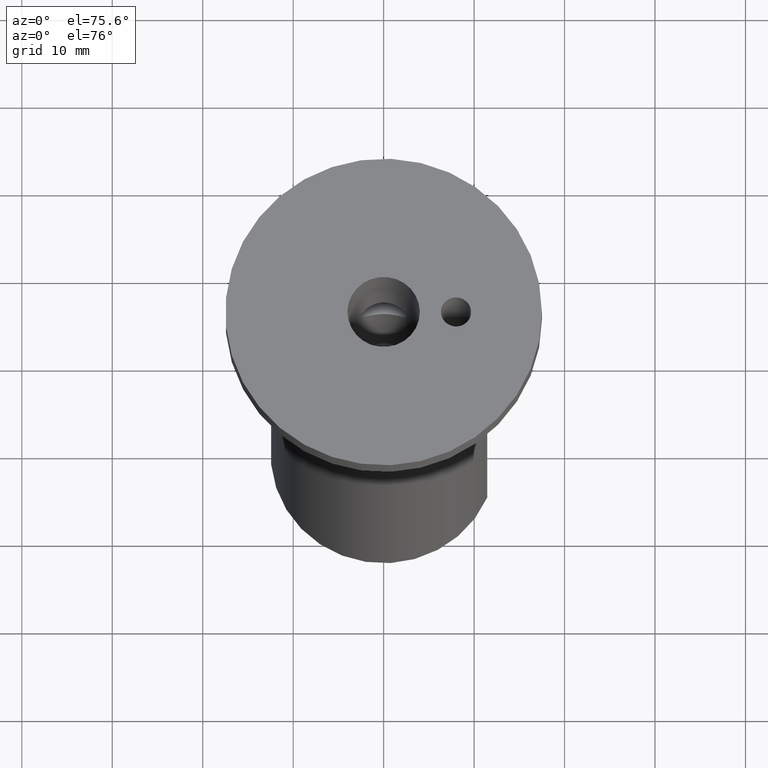
[diagram: clean part render]
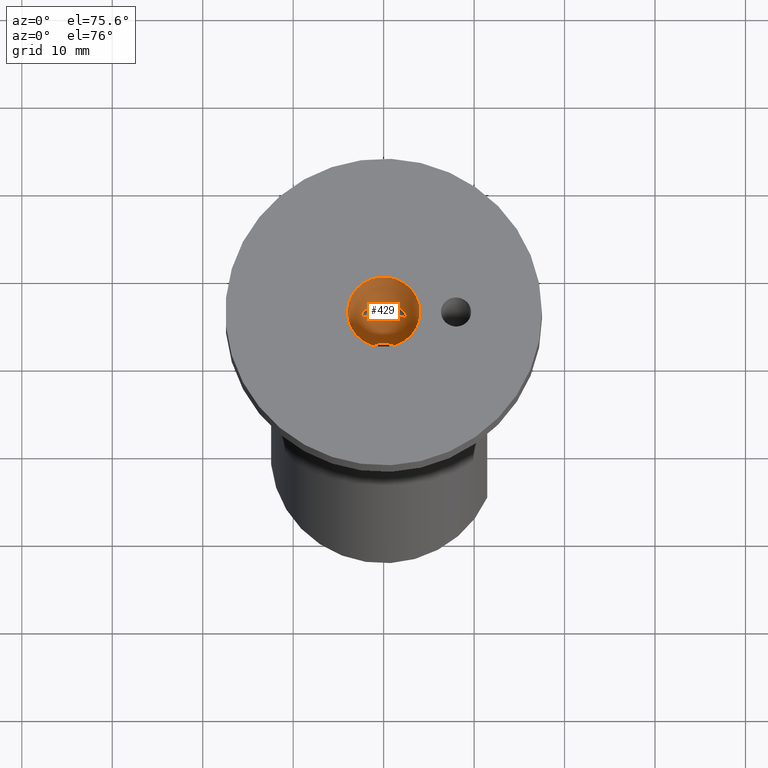
[diagram: same view with one face highlighted and labeled with its STEP entity id]
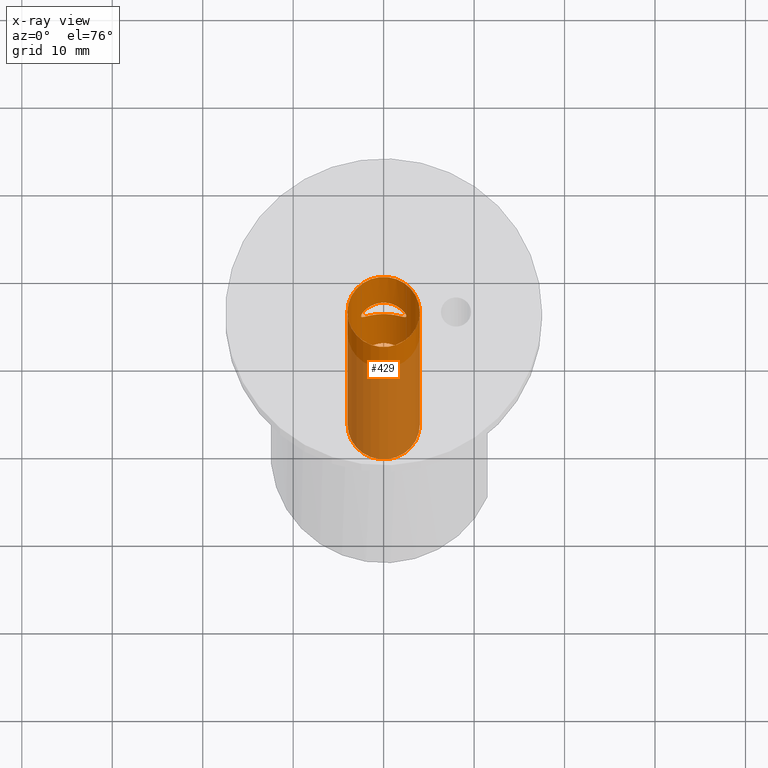
[diagram: x-ray of the same camera — body ghosted, the highlighted face saturated]
A machine part, auxiliary view. The second image highlights one B-rep face of the part: STEP entity #429.
The next image is the same camera in x-ray: the body ghosted, the highlighted face saturated — about 57% of this face is hidden behind the body in this view.
In plain terms, the highlighted cylindrical surface (bore or boss wall) has radius 4 mm, axis along (0, 0, -1).
Its self-contained STEP definition (entity closure, byte-faithful):
#24=FACE_BOUND('',#95,.T.);
#25=FACE_BOUND('',#96,.T.);
#63=FACE_OUTER_BOUND('',#94,.T.);
#94=EDGE_LOOP('',(#389,#390,#391,#392));
#95=EDGE_LOOP('',(#393,#394));
#96=EDGE_LOOP('',(#395,#396));
#101=B_SPLINE_CURVE_WITH_KNOTS('',3,(#725,#726,#727,#728,#729,#730,#731,
#732,#733,#734,#735,#736,#737,#738,#739,#740,#741,#742),.UNSPECIFIED.,.F.,
 .F.,(4,2,2,2,2,2,2,2,4),(0.,0.0986235986499876,0.197247197299975,0.295063559412484,
0.392879921524993,0.490696283637503,0.588512645750012,0.687136244399999,
0.785759843049987),.UNSPECIFIED.);
#102=B_SPLINE_CURVE_WITH_KNOTS('',3,(#743,#744,#745,#746,#747,#748,#749,
#750,#751,#752,#753,#754,#755,#756,#757,#758,#759,#760),.UNSPECIFIED.,.F.,
 .F.,(4,2,2,2,2,2,2,2,4),(0.785759843049987,0.884383441699975,0.983007040349962,
1.08082340246247,1.17863976457498,1.27645612668749,1.3742724888,1.47289608744999,
1.57151968609997),.UNSPECIFIED.);
#103=B_SPLINE_CURVE_WITH_KNOTS('',3,(#767,#768,#769,#770,#771,#772,#773,
#774,#775,#776,#777,#778,#779,#780,#781,#782,#783,#784),.UNSPECIFIED.,.F.,
 .F.,(4,2,2,2,2,2,2,2,4),(0.,0.0986235986499876,0.197247197299975,0.295063559412484,
0.392879921524993,0.490696283637503,0.588512645750012,0.687136244399999,
0.785759843049987),.UNSPECIFIED.);
#104=B_SPLINE_CURVE_WITH_KNOTS('',3,(#785,#786,#787,#788,#789,#790,#791,
#792,#793,#794,#795,#796,#797,#798,#799,#800,#801,#802),.UNSPECIFIED.,.F.,
 .F.,(4,2,2,2,2,2,2,2,4),(0.785759843049987,0.884383441699974,0.983007040349962,
1.08082340246247,1.17863976457498,1.27645612668749,1.3742724888,1.47289608744999,
1.57151968609997),.UNSPECIFIED.);
#131=LINE('',#842,#158);
#158=VECTOR('',#604,4.);
#172=CIRCLE('',#471,4.);
#179=CIRCLE('',#486,4.);
#204=VERTEX_POINT('',#722);
#205=VERTEX_POINT('',#724);
#207=VERTEX_POINT('',#764);
#208=VERTEX_POINT('',#766);
#214=VERTEX_POINT('',#816);
#219=VERTEX_POINT('',#839);
#255=EDGE_CURVE('',#205,#204,#101,.T.);
#256=EDGE_CURVE('',#204,#205,#102,.T.);
#259=EDGE_CURVE('',#208,#207,#103,.T.);
#260=EDGE_CURVE('',#207,#208,#104,.T.);
#267=EDGE_CURVE('',#214,#214,#172,.T.);
#277=EDGE_CURVE('',#219,#219,#179,.T.);
#278=EDGE_CURVE('',#219,#214,#131,.T.);
#389=ORIENTED_EDGE('',*,*,#277,.T.);
#390=ORIENTED_EDGE('',*,*,#278,.T.);
#391=ORIENTED_EDGE('',*,*,#267,.F.);
#392=ORIENTED_EDGE('',*,*,#278,.F.);
#393=ORIENTED_EDGE('',*,*,#255,.T.);
#394=ORIENTED_EDGE('',*,*,#256,.T.);
#395=ORIENTED_EDGE('',*,*,#259,.T.);
#396=ORIENTED_EDGE('',*,*,#260,.T.);
#406=CYLINDRICAL_SURFACE('',#487,4.);
#429=ADVANCED_FACE('',(#63,#24,#25),#406,.F.);
#471=AXIS2_PLACEMENT_3D('',#817,#567,#568);
#486=AXIS2_PLACEMENT_3D('',#840,#600,#601);
#487=AXIS2_PLACEMENT_3D('',#841,#602,#603);
#567=DIRECTION('center_axis',(0.,0.,-1.));
#568=DIRECTION('ref_axis',(1.,0.,0.));
#600=DIRECTION('center_axis',(0.,0.,-1.));
#601=DIRECTION('ref_axis',(1.,0.,0.));
#602=DIRECTION('center_axis',(0.,0.,-1.));
#603=DIRECTION('ref_axis',(-1.,0.,0.));
#604=DIRECTION('',(0.,0.,1.));
#722=CARTESIAN_POINT('',(2.5175,3.10840694729631,-14.));
#724=CARTESIAN_POINT('',(-2.5175,3.10840694729632,-14.));
#725=CARTESIAN_POINT('Ctrl Pts',(-2.5175,3.10840694729632,-14.));
#726=CARTESIAN_POINT('Ctrl Pts',(-2.5175,3.10840694729632,-13.6712546711667));
#727=CARTESIAN_POINT('Ctrl Pts',(-2.4498460511641,3.16599705185193,-13.3310360395569));
#728=CARTESIAN_POINT('Ctrl Pts',(-2.19081428504988,3.35046453738414,-12.7156343303178));
#729=CARTESIAN_POINT('Ctrl Pts',(-1.99945256641406,3.47306284190257,-12.4391699231398));
#730=CARTESIAN_POINT('Ctrl Pts',(-1.56262514469678,3.69014917492908,-12.0023425014225));
#731=CARTESIAN_POINT('Ctrl Pts',(-1.28570809922908,3.8011176237538,-11.8097566006004));
#732=CARTESIAN_POINT('Ctrl Pts',(-0.667689951685592,3.9567323396499,-11.5496118632094));
#733=CARTESIAN_POINT('Ctrl Pts',(-0.32605454037503,4.,-11.4825));
#734=CARTESIAN_POINT('Ctrl Pts',(0.32605454037503,4.,-11.4825));
#735=CARTESIAN_POINT('Ctrl Pts',(0.667689951685592,3.9567323396499,-11.5496118632094));
#736=CARTESIAN_POINT('Ctrl Pts',(1.28570809922908,3.8011176237538,-11.8097566006004));
#737=CARTESIAN_POINT('Ctrl Pts',(1.56262514469678,3.69014917492908,-12.0023425014225));
#738=CARTESIAN_POINT('Ctrl Pts',(1.99945256641406,3.47306284190257,-12.4391699231398));
#739=CARTESIAN_POINT('Ctrl Pts',(2.19081428504988,3.35046453738414,-12.7156343303178));
#740=CARTESIAN_POINT('Ctrl Pts',(2.4498460511641,3.16599705185193,-13.3310360395569));
#741=CARTESIAN_POINT('Ctrl Pts',(2.5175,3.10840694729631,-13.6712546711667));
#742=CARTESIAN_POINT('Ctrl Pts',(2.5175,3.10840694729631,-14.));
#743=CARTESIAN_POINT('Ctrl Pts',(2.5175,3.10840694729631,-14.));
#744=CARTESIAN_POINT('Ctrl Pts',(2.5175,3.10840694729631,-14.3287453288333));
#745=CARTESIAN_POINT('Ctrl Pts',(2.4498460511641,3.16599705185193,-14.6689639604431));
#746=CARTESIAN_POINT('Ctrl Pts',(2.19081428504988,3.35046453738413,-15.2843656696822));
#747=CARTESIAN_POINT('Ctrl Pts',(1.99945256641406,3.47306284190257,-15.5608300768602));
#748=CARTESIAN_POINT('Ctrl Pts',(1.56262514469678,3.69014917492908,-15.9976574985775));
#749=CARTESIAN_POINT('Ctrl Pts',(1.28570809922908,3.8011176237538,-16.1902433993996));
#750=CARTESIAN_POINT('Ctrl Pts',(0.667689951685593,3.9567323396499,-16.4503881367906));
#751=CARTESIAN_POINT('Ctrl Pts',(0.326054540375031,4.,-16.5175));
#752=CARTESIAN_POINT('Ctrl Pts',(-0.32605454037503,4.,-16.5175));
#753=CARTESIAN_POINT('Ctrl Pts',(-0.667689951685592,3.9567323396499,-16.4503881367906));
#754=CARTESIAN_POINT('Ctrl Pts',(-1.28570809922908,3.8011176237538,-16.1902433993996));
#755=CARTESIAN_POINT('Ctrl Pts',(-1.56262514469678,3.69014917492908,-15.9976574985775));
#756=CARTESIAN_POINT('Ctrl Pts',(-1.99945256641406,3.47306284190257,-15.5608300768602));
#757=CARTESIAN_POINT('Ctrl Pts',(-2.19081428504988,3.35046453738413,-15.2843656696822));
#758=CARTESIAN_POINT('Ctrl Pts',(-2.4498460511641,3.16599705185193,-14.6689639604431));
#759=CARTESIAN_POINT('Ctrl Pts',(-2.5175,3.10840694729631,-14.3287453288333));
#760=CARTESIAN_POINT('Ctrl Pts',(-2.5175,3.10840694729631,-14.));
#764=CARTESIAN_POINT('',(2.5175,3.10840694729631,-32.));
#766=CARTESIAN_POINT('',(-2.5175,3.10840694729632,-32.));
#767=CARTESIAN_POINT('Ctrl Pts',(-2.5175,3.10840694729632,-32.));
#768=CARTESIAN_POINT('Ctrl Pts',(-2.5175,3.10840694729632,-31.6712546711667));
#769=CARTESIAN_POINT('Ctrl Pts',(-2.4498460511641,3.16599705185193,-31.3310360395569));
#770=CARTESIAN_POINT('Ctrl Pts',(-2.19081428504988,3.35046453738414,-30.7156343303178));
#771=CARTESIAN_POINT('Ctrl Pts',(-1.99945256641406,3.47306284190257,-30.4391699231398));
#772=CARTESIAN_POINT('Ctrl Pts',(-1.56262514469678,3.69014917492908,-30.0023425014225));
#773=CARTESIAN_POINT('Ctrl Pts',(-1.28570809922908,3.8011176237538,-29.8097566006004));
#774=CARTESIAN_POINT('Ctrl Pts',(-0.66768995168559,3.9567323396499,-29.5496118632094));
#775=CARTESIAN_POINT('Ctrl Pts',(-0.326054540375031,4.,-29.4825));
#776=CARTESIAN_POINT('Ctrl Pts',(0.32605454037503,4.,-29.4825));
#777=CARTESIAN_POINT('Ctrl Pts',(0.667689951685593,3.9567323396499,-29.5496118632094));
#778=CARTESIAN_POINT('Ctrl Pts',(1.28570809922908,3.8011176237538,-29.8097566006004));
#779=CARTESIAN_POINT('Ctrl Pts',(1.56262514469678,3.69014917492908,-30.0023425014225));
#780=CARTESIAN_POINT('Ctrl Pts',(1.99945256641406,3.47306284190257,-30.4391699231398));
#781=CARTESIAN_POINT('Ctrl Pts',(2.19081428504988,3.35046453738414,-30.7156343303178));
#782=CARTESIAN_POINT('Ctrl Pts',(2.4498460511641,3.16599705185193,-31.3310360395569));
#783=CARTESIAN_POINT('Ctrl Pts',(2.5175,3.10840694729631,-31.6712546711667));
#784=CARTESIAN_POINT('Ctrl Pts',(2.5175,3.10840694729631,-32.));
#785=CARTESIAN_POINT('Ctrl Pts',(2.5175,3.10840694729631,-32.));
#786=CARTESIAN_POINT('Ctrl Pts',(2.5175,3.10840694729631,-32.3287453288333));
#787=CARTESIAN_POINT('Ctrl Pts',(2.4498460511641,3.16599705185193,-32.6689639604431));
#788=CARTESIAN_POINT('Ctrl Pts',(2.19081428504989,3.35046453738413,-33.2843656696822));
#789=CARTESIAN_POINT('Ctrl Pts',(1.99945256641406,3.47306284190256,-33.5608300768602));
#790=CARTESIAN_POINT('Ctrl Pts',(1.56262514469678,3.69014917492908,-33.9976574985775));
#791=CARTESIAN_POINT('Ctrl Pts',(1.28570809922908,3.8011176237538,-34.1902433993996));
#792=CARTESIAN_POINT('Ctrl Pts',(0.667689951685595,3.9567323396499,-34.4503881367906));
#793=CARTESIAN_POINT('Ctrl Pts',(0.326054540375031,4.,-34.5175));
#794=CARTESIAN_POINT('Ctrl Pts',(-0.32605454037503,4.,-34.5175));
#795=CARTESIAN_POINT('Ctrl Pts',(-0.667689951685594,3.9567323396499,-34.4503881367906));
#796=CARTESIAN_POINT('Ctrl Pts',(-1.28570809922908,3.8011176237538,-34.1902433993996));
#797=CARTESIAN_POINT('Ctrl Pts',(-1.56262514469678,3.69014917492908,-33.9976574985775));
#798=CARTESIAN_POINT('Ctrl Pts',(-1.99945256641406,3.47306284190256,-33.5608300768602));
#799=CARTESIAN_POINT('Ctrl Pts',(-2.19081428504988,3.35046453738414,-33.2843656696822));
#800=CARTESIAN_POINT('Ctrl Pts',(-2.4498460511641,3.16599705185193,-32.6689639604431));
#801=CARTESIAN_POINT('Ctrl Pts',(-2.5175,3.10840694729631,-32.3287453288333));
#802=CARTESIAN_POINT('Ctrl Pts',(-2.5175,3.10840694729631,-32.));
#816=CARTESIAN_POINT('',(4.,-4.89858719658941E-16,-4.44089209850063E-15));
#817=CARTESIAN_POINT('Origin',(0.,0.,-4.44089209850063E-15));
#839=CARTESIAN_POINT('',(4.,-4.89858719658941E-16,-50.));
#840=CARTESIAN_POINT('Origin',(0.,0.,-50.));
#841=CARTESIAN_POINT('Origin',(0.,0.,-25.));
#842=CARTESIAN_POINT('',(4.,-4.89858719658941E-16,-25.));